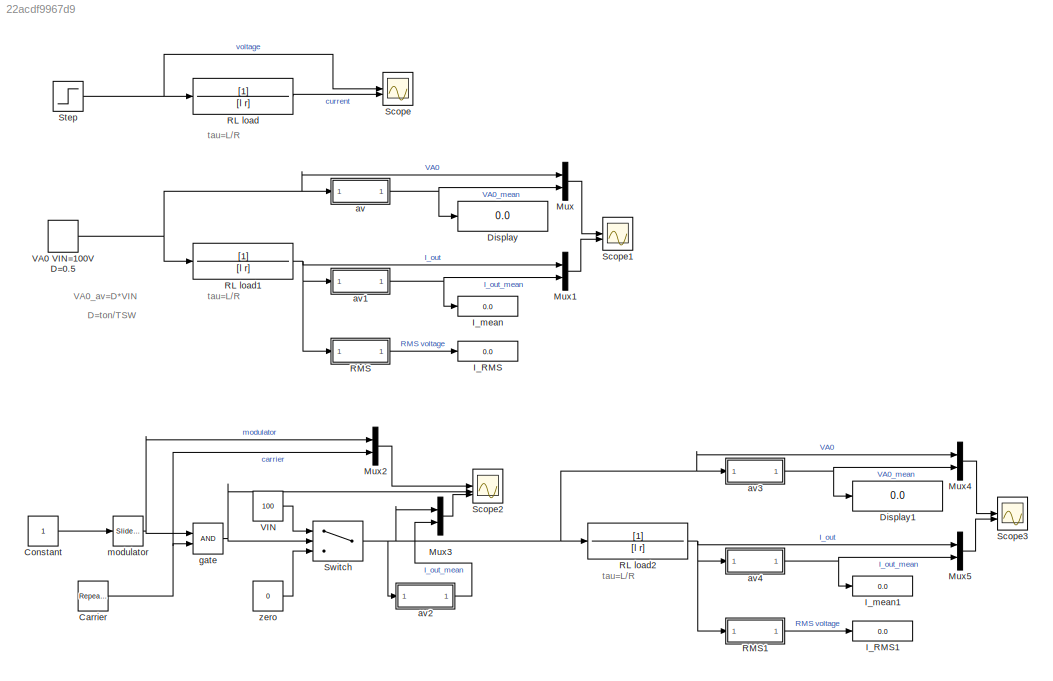
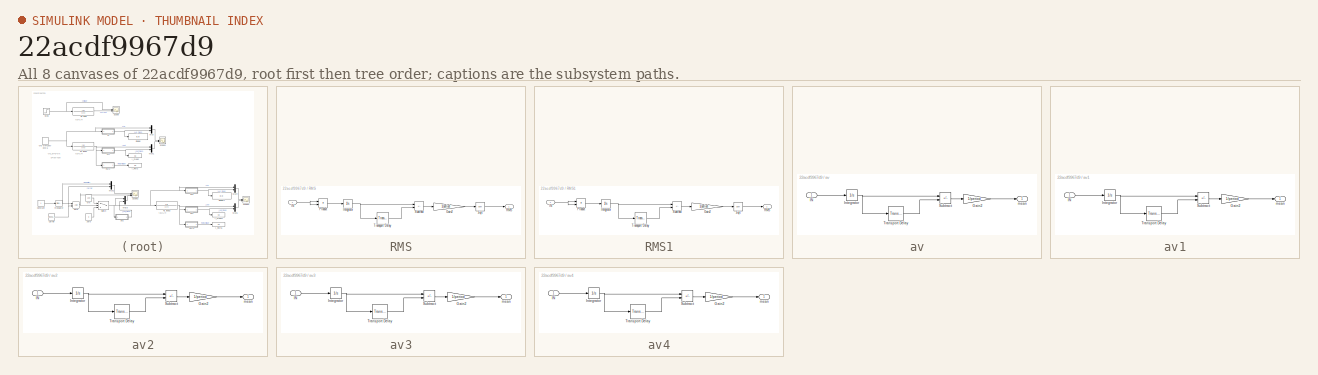
[diagram: thumbnail index - all 8 canvases of the model, root first then tree order]
MODEL slx_22acdf9967d9
KIND model
CONFIG AbsTol = auto
CONFIG EnableMultiTasking = off
CONFIG FixedStep = auto
CONFIG MaxStep = 1e-5
CONFIG MinStep = auto
CONFIG RelTol = 1e-3
CONFIG SampleTimeConstraint = Unconstrained
CONFIG SolverName = VariableStepAuto
CONFIG StartTime = 0.0
CONFIG StopTime = 10.0
BLOCK [Reference] Carrier   REF=simulink/Sources/Repeating
Sequence
  SourceBlock = simulink/Sources/Repeating\nSequence
  SourceType = Repeating table
BLOCK [Constant] Constant
BLOCK [Display] Display
  Decimation = 1
BLOCK [Display] Display1
  Decimation = 1
BLOCK [Display] I_RMS
  Decimation = 1
BLOCK [Display] I_RMS1
  Decimation = 1
BLOCK [Display] I_mean
  Decimation = 1
BLOCK [Display] I_mean1
  Decimation = 1
BLOCK [Mux] Mux
  DisplayOption = bar
  Inputs = 2
BLOCK [Mux] Mux1
  DisplayOption = bar
  Inputs = 2
BLOCK [Mux] Mux2
  DisplayOption = bar
  Inputs = 2
BLOCK [Mux] Mux3
  DisplayOption = bar
  Inputs = 2
BLOCK [Mux] Mux4
  DisplayOption = bar
  Inputs = 2
BLOCK [Mux] Mux5
  DisplayOption = bar
  Inputs = 2
BLOCK [TransferFcn] RL load
  Denominator = [l r]
BLOCK [TransferFcn] RL load1
  Denominator = [l r]
BLOCK [TransferFcn] RL load2
  Denominator = [l r]
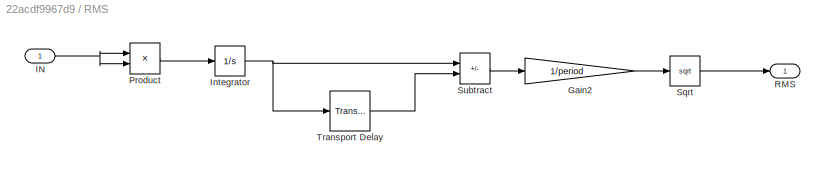
BLOCK [SubSystem] RMS
BLOCK [Gain] RMS/Gain2
  Gain = 1/period
BLOCK [Inport] RMS/IN
BLOCK [Integrator] RMS/Integrator
BLOCK [Product] RMS/Product
BLOCK [Outport] RMS/RMS
BLOCK [Sqrt] RMS/Sqrt
BLOCK [Sum] RMS/Subtract
  IconShape = rectangular
  Inputs = +-
BLOCK [TransportDelay] RMS/Transport Delay
  DelayTime = period
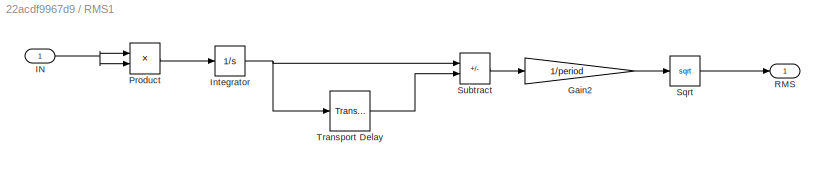
BLOCK [SubSystem] RMS1
BLOCK [Gain] RMS1/Gain2
  Gain = 1/period
BLOCK [Inport] RMS1/IN
BLOCK [Integrator] RMS1/Integrator
BLOCK [Product] RMS1/Product
BLOCK [Outport] RMS1/RMS
BLOCK [Sqrt] RMS1/Sqrt
BLOCK [Sum] RMS1/Subtract
  IconShape = rectangular
  Inputs = +-
BLOCK [TransportDelay] RMS1/Transport Delay
  DelayTime = period
BLOCK [Scope] Scope
  Floating = off
  NumInputPorts = 2
  ScopeSpecificationString = Simulink.scopes.TimeScopeBlockCfg('CurrentConfiguration', extmgr.ConfigurationSet(extmgr.Configuration('Core','General UI',true),extmgr.Configuration('Core','Source UI',true),extmgr.Configuration('Sources','WiredSimulink',true),extmgr.Configuration('Visuals','Time Domain',true,'SerializedDisplays',{struct('MinYLimReal','-12.5','MaxYLimReal','112.5','YLabelReal','[V]','MinYLimMag','0.00000','MaxYLi...<+2203ch>
BLOCK [Scope] Scope1
  Floating = off
  NumInputPorts = 2
  ScopeSpecificationString = Simulink.scopes.TimeScopeBlockCfg('CurrentConfiguration', extmgr.ConfigurationSet(extmgr.Configuration('Core','General UI',true),extmgr.Configuration('Core','Source UI',true),extmgr.Configuration('Sources','WiredSimulink',true,'DataLoggingVariableName','ScopeData1'),extmgr.Configuration('Visuals','Time Domain',true,'SerializedDisplays',{struct('MinYLimReal','-12.5','MaxYLimReal','112.5','YLabelRea...<+2457ch>
BLOCK [Scope] Scope2
  Floating = off
  NumInputPorts = 3
  ScopeSpecificationString = Simulink.scopes.TimeScopeBlockCfg('CurrentConfiguration', extmgr.ConfigurationSet(extmgr.Configuration('Core','General UI',true),extmgr.Configuration('Core','Source UI',true),extmgr.Configuration('Sources','WiredSimulink',true,'DataLoggingVariableName','ScopeData2'),extmgr.Configuration('Visuals','Time Domain',true,'SerializedDisplays',{struct('MinYLimReal','-0.125','MaxYLimReal','1.125','YLabelRe...<+3271ch>
BLOCK [Scope] Scope3
  Floating = off
  NumInputPorts = 2
  ScopeSpecificationString = Simulink.scopes.TimeScopeBlockCfg('CurrentConfiguration', extmgr.ConfigurationSet(extmgr.Configuration('Core','General UI',true),extmgr.Configuration('Core','Source UI',true),extmgr.Configuration('Sources','WiredSimulink',true,'DataLoggingVariableName','ScopeData3'),extmgr.Configuration('Visuals','Time Domain',true,'SerializedDisplays',{struct('MinYLimReal','-12.5','MaxYLimReal','112.5','YLabelRea...<+2476ch>
BLOCK [Step] Step
  After = 100
  SampleTime = 0
BLOCK [Switch] Switch
  Criteria = u2 > Threshold
  InputSameDT = off
  SaturateOnIntegerOverflow = off
BLOCK [DiscretePulseGenerator] VA0 VIN=100V D=0.5
  Amplitude = 100
  Period = 1/fsw
  PulseType = Time based
  PulseWidth = 50
BLOCK [Constant] VIN
  Value = 100
BLOCK [SubSystem] av
BLOCK [Gain] av/Gain2
  Gain = 1/period
BLOCK [Inport] av/IN
BLOCK [Integrator] av/Integrator
BLOCK [Sum] av/Subtract
  IconShape = rectangular
  Inputs = +-
BLOCK [TransportDelay] av/Transport Delay
  DelayTime = period
BLOCK [Outport] av/mean
BLOCK [SubSystem] av1
BLOCK [Gain] av1/Gain2
  Gain = 1/period
BLOCK [Inport] av1/IN
BLOCK [Integrator] av1/Integrator
BLOCK [Sum] av1/Subtract
  IconShape = rectangular
  Inputs = +-
BLOCK [TransportDelay] av1/Transport Delay
  DelayTime = period
BLOCK [Outport] av1/mean
BLOCK [SubSystem] av2
BLOCK [Gain] av2/Gain2
  Gain = 1/period
BLOCK [Inport] av2/IN
BLOCK [Integrator] av2/Integrator
BLOCK [Sum] av2/Subtract
  IconShape = rectangular
  Inputs = +-
BLOCK [TransportDelay] av2/Transport Delay
  DelayTime = period
BLOCK [Outport] av2/mean
BLOCK [SubSystem] av3
BLOCK [Gain] av3/Gain2
  Gain = 1/period
BLOCK [Inport] av3/IN
BLOCK [Integrator] av3/Integrator
BLOCK [Sum] av3/Subtract
  IconShape = rectangular
  Inputs = +-
BLOCK [TransportDelay] av3/Transport Delay
  DelayTime = period
BLOCK [Outport] av3/mean
BLOCK [SubSystem] av4
BLOCK [Gain] av4/Gain2
  Gain = 1/period
BLOCK [Inport] av4/IN
BLOCK [Integrator] av4/Integrator
BLOCK [Sum] av4/Subtract
  IconShape = rectangular
  Inputs = +-
BLOCK [TransportDelay] av4/Transport Delay
  DelayTime = period
BLOCK [Outport] av4/mean
BLOCK [RelationalOperator] gate
  InputSameDT = off
  OutDataTypeStr = boolean
  RndMeth = Simplest
BLOCK [Reference] modulator  REF=simulink/Math
Operations/Slider
Gain
  SourceBlock = simulink/Math\nOperations/Slider\nGain
  SourceType = Slider Gain
BLOCK [Constant] zero
  Value = 0
ANNOTATION (root): D=ton/TSW
ANNOTATION (root): VA0_av=D*VIN
ANNOTATION (root): tau=L/R
NET Carrier :1 -> Mux2:2, gate:2
LINE Constant:1 -> modulator:1
LINE Mux1:1 -> Scope1:2
LINE Mux2:1 -> Scope2:1
LINE Mux3:1 -> Scope2:3
LINE Mux4:1 -> Scope3:1
LINE Mux5:1 -> Scope3:2
LINE Mux:1 -> Scope1:1
NET RL load1:1 -> Mux1:1, RMS:1, av1:1
NET RL load2:1 -> Mux5:1, RMS1:1, av4:1
LINE RL load:1 -> Scope:2
LINE RMS/Gain2:1 -> RMS/Sqrt:1
NET RMS/IN:1 -> RMS/Product:1, RMS/Product:2
NET RMS/Integrator:1 -> RMS/Subtract:1, RMS/Transport Delay:1
LINE RMS/Product:1 -> RMS/Integrator:1
LINE RMS/Sqrt:1 -> RMS/RMS:1
LINE RMS/Subtract:1 -> RMS/Gain2:1
LINE RMS/Transport Delay:1 -> RMS/Subtract:2
LINE RMS1/Gain2:1 -> RMS1/Sqrt:1
NET RMS1/IN:1 -> RMS1/Product:1, RMS1/Product:2
NET RMS1/Integrator:1 -> RMS1/Subtract:1, RMS1/Transport Delay:1
LINE RMS1/Product:1 -> RMS1/Integrator:1
LINE RMS1/Sqrt:1 -> RMS1/RMS:1
LINE RMS1/Subtract:1 -> RMS1/Gain2:1
LINE RMS1/Transport Delay:1 -> RMS1/Subtract:2
LINE RMS1:1 -> I_RMS1:1
LINE RMS:1 -> I_RMS:1
NET Step:1 -> RL load:1, Scope:1
NET Switch:1 -> Mux3:1, Mux4:1, RL load2:1, av2:1, av3:1
NET VA0 VIN=100V D=0.5:1 -> Mux:1, RL load1:1, av:1
LINE VIN:1 -> Switch:1
LINE av/Gain2:1 -> av/mean:1
LINE av/IN:1 -> av/Integrator:1
NET av/Integrator:1 -> av/Subtract:1, av/Transport Delay:1
LINE av/Subtract:1 -> av/Gain2:1
LINE av/Transport Delay:1 -> av/Subtract:2
LINE av1/Gain2:1 -> av1/mean:1
LINE av1/IN:1 -> av1/Integrator:1
NET av1/Integrator:1 -> av1/Subtract:1, av1/Transport Delay:1
LINE av1/Subtract:1 -> av1/Gain2:1
LINE av1/Transport Delay:1 -> av1/Subtract:2
NET av1:1 -> I_mean:1, Mux1:2
LINE av2/Gain2:1 -> av2/mean:1
LINE av2/IN:1 -> av2/Integrator:1
NET av2/Integrator:1 -> av2/Subtract:1, av2/Transport Delay:1
LINE av2/Subtract:1 -> av2/Gain2:1
LINE av2/Transport Delay:1 -> av2/Subtract:2
LINE av2:1 -> Mux3:2
LINE av3/Gain2:1 -> av3/mean:1
LINE av3/IN:1 -> av3/Integrator:1
NET av3/Integrator:1 -> av3/Subtract:1, av3/Transport Delay:1
LINE av3/Subtract:1 -> av3/Gain2:1
LINE av3/Transport Delay:1 -> av3/Subtract:2
NET av3:1 -> Display1:1, Mux4:2
LINE av4/Gain2:1 -> av4/mean:1
LINE av4/IN:1 -> av4/Integrator:1
NET av4/Integrator:1 -> av4/Subtract:1, av4/Transport Delay:1
LINE av4/Subtract:1 -> av4/Gain2:1
LINE av4/Transport Delay:1 -> av4/Subtract:2
NET av4:1 -> I_mean1:1, Mux5:2
NET av:1 -> Display:1, Mux:2
NET gate:1 -> Scope2:2, Switch:2
NET modulator:1 -> Mux2:1, gate:1
LINE zero:1 -> Switch:3
note: NET lines group one-source signal fan-out (src -> all destinations, sorted); 1:1 wires keep LINE
